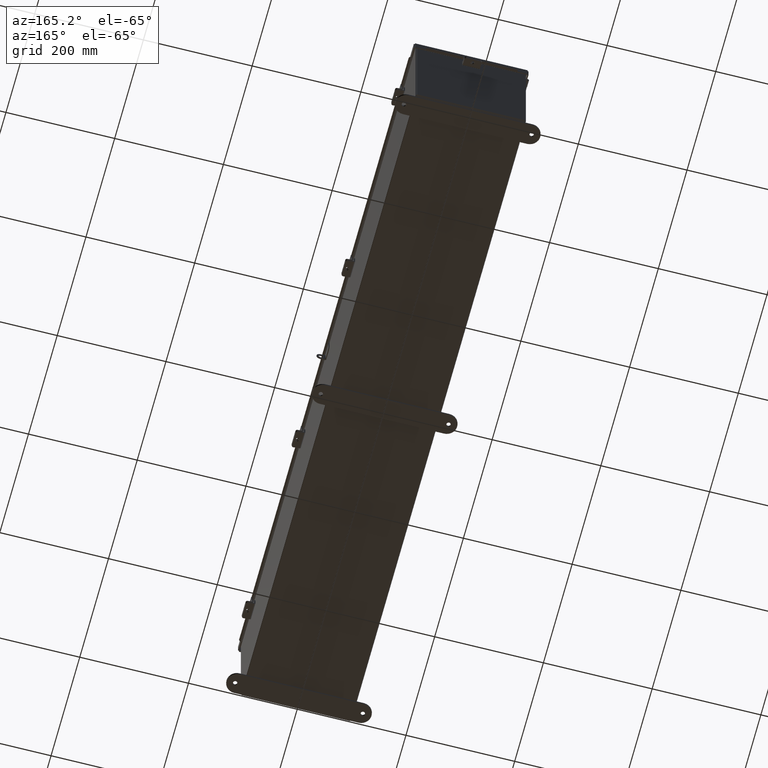
[diagram: clean part render]
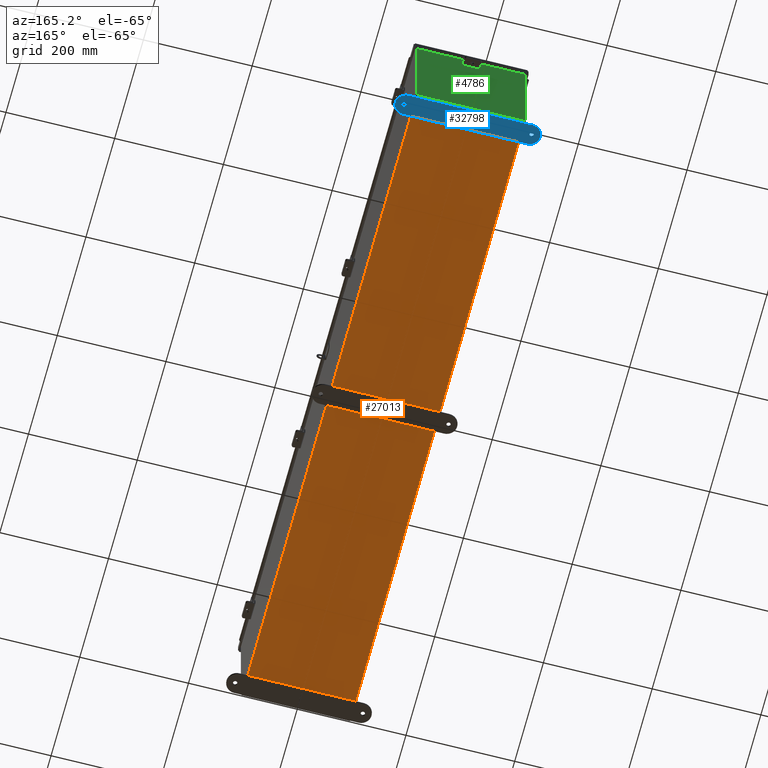
[diagram: same view with three faces highlighted in distinct colors, each labeled with its STEP entity id]
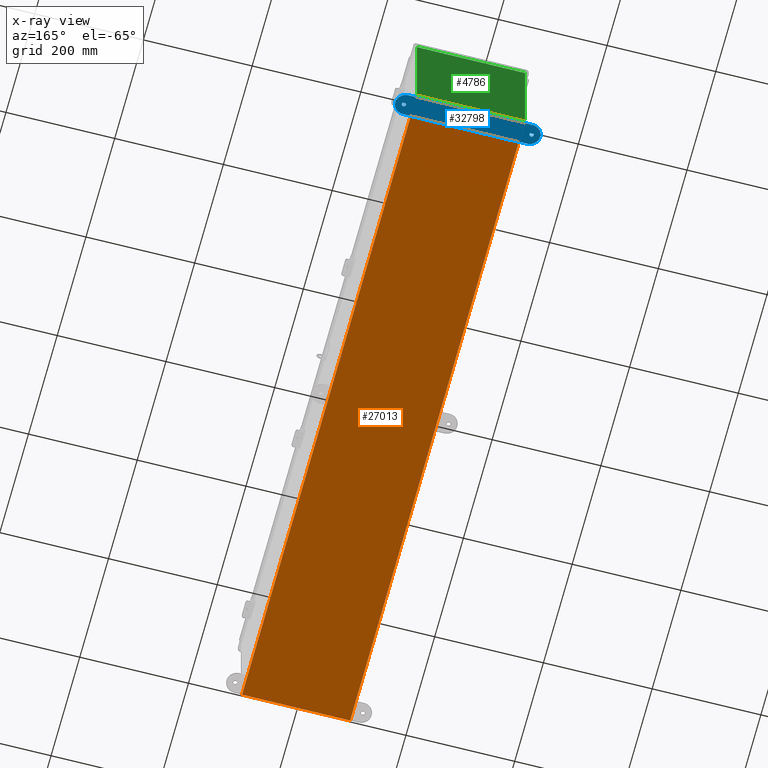
[diagram: x-ray of the same camera — body ghosted, the three highlighted faces saturated]
A machine part, auxiliary view with three faces highlighted in distinct colors.
The next image is the same camera in x-ray (body ghosted, the three faces saturated) — at least one of them is partly hidden behind the body in this view.
Their STEP definitions:

[orange] entity #27013 — the highlighted planar face has unit normal (0, 0, -1).
#205 = EDGE_CURVE ( 'NONE', #11272, #29073, #24738, .T. ) ;
#1762 = CARTESIAN_POINT ( 'NONE',  ( -4.000000000000001800, -23.92530000000000000, -0.07470000000000000300 ) ) ;
#1837 = DIRECTION ( 'NONE',  ( 1.000000000000000000, 5.463695987328526400E-016, 0.0000000000000000000 ) ) ;
#2497 = DIRECTION ( 'NONE',  ( -0.0000000000000000000, 1.000000000000000000, -0.0000000000000000000 ) ) ;
#3378 = CARTESIAN_POINT ( 'NONE',  ( -4.000000000000001800, 23.92530000000000700, -0.07470000000000000300 ) ) ;
#3596 = DIRECTION ( 'NONE',  ( -1.000000000000000000, -0.0000000000000000000, -0.0000000000000000000 ) ) ;
#5495 = DIRECTION ( 'NONE',  ( -0.0000000000000000000, -1.000000000000000000, 8.208677865577646300E-017 ) ) ;
#6029 = VECTOR ( 'NONE', #5495, 39.37007874015748100 ) ;
#6187 = VERTEX_POINT ( 'NONE', #31679 ) ;
#6406 = CARTESIAN_POINT ( 'NONE',  ( 0.0000000000000000000, 0.0000000000000000000, -0.07470000000000000300 ) ) ;
#6536 = FACE_OUTER_BOUND ( 'NONE', #15817, .T. ) ;
#7413 = CARTESIAN_POINT ( 'NONE',  ( -3.912300000000001400, 23.92530000000000700, -0.07470000000000000300 ) ) ;
#9197 = AXIS2_PLACEMENT_3D ( 'NONE', #6406, #26138, #9213 ) ;
#9213 = DIRECTION ( 'NONE',  ( -1.000000000000000000, 0.0000000000000000000, -0.0000000000000000000 ) ) ;
#9874 = ORIENTED_EDGE ( 'NONE', *, *, #19510, .T. ) ;
#11272 = VERTEX_POINT ( 'NONE', #17234 ) ;
#14110 = EDGE_CURVE ( 'NONE', #6187, #29290, #24358, .T. ) ;
#14763 = PLANE ( 'NONE',  #9197 ) ;
#15817 = EDGE_LOOP ( 'NONE', ( #27066, #35385, #22197, #9874 ) ) ;
#16836 = VECTOR ( 'NONE', #1837, 39.37007874015748100 ) ;
#17234 = CARTESIAN_POINT ( 'NONE',  ( 3.912299999999997900, 23.92529999999998900, -0.07470000000000300000 ) ) ;
#18098 = VECTOR ( 'NONE', #3596, 39.37007874015748100 ) ;
#19429 = CARTESIAN_POINT ( 'NONE',  ( -3.912300000000001400, -23.92530000000000000, -0.07470000000000022500 ) ) ;
#19510 = EDGE_CURVE ( 'NONE', #6187, #29073, #28281, .T. ) ;
#19728 = CARTESIAN_POINT ( 'NONE',  ( 3.912299999999997900, -23.92529999999998200, -0.07470000000000000300 ) ) ;
#19914 = VECTOR ( 'NONE', #2497, 39.37007874015748100 ) ;
#22197 = ORIENTED_EDGE ( 'NONE', *, *, #14110, .F. ) ;
#23512 = EDGE_CURVE ( 'NONE', #11272, #29290, #29335, .T. ) ;
#24358 = LINE ( 'NONE', #1762, #16836 ) ;
#24738 = LINE ( 'NONE', #3378, #18098 ) ;
#25161 = CARTESIAN_POINT ( 'NONE',  ( 3.912299999999997900, 23.92530000000000000, -0.07470000000000300000 ) ) ;
#26138 = DIRECTION ( 'NONE',  ( 0.0000000000000000000, 0.0000000000000000000, -1.000000000000000000 ) ) ;
#27013 = ADVANCED_FACE ( 'NONE', ( #6536 ), #14763, .T. ) ;
#27066 = ORIENTED_EDGE ( 'NONE', *, *, #205, .F. ) ;
#28281 = LINE ( 'NONE', #19429, #19914 ) ;
#29073 = VERTEX_POINT ( 'NONE', #7413 ) ;
#29290 = VERTEX_POINT ( 'NONE', #19728 ) ;
#29335 = LINE ( 'NONE', #25161, #6029 ) ;
#31679 = CARTESIAN_POINT ( 'NONE',  ( -3.912300000000001400, -23.92529999999999600, -0.07470000000000022500 ) ) ;
#35385 = ORIENTED_EDGE ( 'NONE', *, *, #23512, .T. ) ;

[blue] entity #32798 — the highlighted planar face has unit normal (0, 0, 1).
#664 = DIRECTION ( 'NONE',  ( 1.000000000000000000, 0.0000000000000000000, 0.0000000000000000000 ) ) ;
#871 = DIRECTION ( 'NONE',  ( 0.0000000000000000000, 0.0000000000000000000, 1.000000000000000000 ) ) ;
#897 = CARTESIAN_POINT ( 'NONE',  ( -4.625000000000000000, 0.4120940649496067100, 0.0000000000000000000 ) ) ;
#1210 = AXIS2_PLACEMENT_3D ( 'NONE', #21915, #13441, #5099 ) ;
#2166 = PLANE ( 'NONE',  #1210 ) ;
#2321 = DIRECTION ( 'NONE',  ( 1.000000000000000000, -1.214154663850783900E-016, 0.0000000000000000000 ) ) ;
#2362 = CIRCLE ( 'NONE', #7235, 0.1564999999999992800 ) ;
#3365 = DIRECTION ( 'NONE',  ( 0.0000000000000000000, 0.0000000000000000000, 1.000000000000000000 ) ) ;
#3556 = DIRECTION ( 'NONE',  ( 0.0000000000000000000, 0.0000000000000000000, 1.000000000000000000 ) ) ;
#4724 = CARTESIAN_POINT ( 'NONE',  ( 5.250000000000000900, 0.4120940649496110900, 0.0000000000000000000 ) ) ;
#4846 = CARTESIAN_POINT ( 'NONE',  ( -4.499999999999999100, 0.4120940649496110900, 0.0000000000000000000 ) ) ;
#5099 = DIRECTION ( 'NONE',  ( -1.000000000000000000, 0.0000000000000000000, 0.0000000000000000000 ) ) ;
#5133 = FACE_OUTER_BOUND ( 'NONE', #19971, .T. ) ;
#7053 = VERTEX_POINT ( 'NONE', #21362 ) ;
#7164 = VERTEX_POINT ( 'NONE', #13926 ) ;
#7235 = AXIS2_PLACEMENT_3D ( 'NONE', #26632, #9731, #29413 ) ;
#7606 = DIRECTION ( 'NONE',  ( 1.000000000000000000, 0.0000000000000000000, 0.0000000000000000000 ) ) ;
#8506 = ORIENTED_EDGE ( 'NONE', *, *, #21304, .T. ) ;
#8681 = AXIS2_PLACEMENT_3D ( 'NONE', #33929, #33917, #33887 ) ;
#9447 = ORIENTED_EDGE ( 'NONE', *, *, #33882, .F. ) ;
#9731 = DIRECTION ( 'NONE',  ( 0.0000000000000000000, 0.0000000000000000000, -1.000000000000000000 ) ) ;
#11012 = EDGE_CURVE ( 'NONE', #16552, #7164, #29931, .T. ) ;
#11291 = EDGE_LOOP ( 'NONE', ( #36013, #14063 ) ) ;
#12471 = EDGE_CURVE ( 'NONE', #13503, #28232, #24418, .T. ) ;
#12590 = FACE_BOUND ( 'NONE', #29492, .T. ) ;
#12923 = VECTOR ( 'NONE', #17134, 39.37007874015748100 ) ;
#13315 = VERTEX_POINT ( 'NONE', #19064 ) ;
#13441 = DIRECTION ( 'NONE',  ( 0.0000000000000000000, 0.0000000000000000000, -1.000000000000000000 ) ) ;
#13503 = VERTEX_POINT ( 'NONE', #14537 ) ;
#13926 = CARTESIAN_POINT ( 'NONE',  ( 4.499999999999999100, 1.162094064949611600, 0.0000000000000000000 ) ) ;
#14063 = ORIENTED_EDGE ( 'NONE', *, *, #12471, .T. ) ;
#14127 = AXIS2_PLACEMENT_3D ( 'NONE', #20385, #3556, #23212 ) ;
#14305 = CARTESIAN_POINT ( 'NONE',  ( -4.499999999999999100, 1.162094064949611600, 0.0000000000000000000 ) ) ;
#14537 = CARTESIAN_POINT ( 'NONE',  ( 4.468500000000000600, 0.4120940649496067100, 0.0000000000000000000 ) ) ;
#15563 = ORIENTED_EDGE ( 'NONE', *, *, #19350, .T. ) ;
#16484 = ORIENTED_EDGE ( 'NONE', *, *, #17564, .F. ) ;
#16552 = VERTEX_POINT ( 'NONE', #4724 ) ;
#17134 = DIRECTION ( 'NONE',  ( -1.000000000000000000, -1.214154663850783900E-016, 0.0000000000000000000 ) ) ;
#17564 = EDGE_CURVE ( 'NONE', #13315, #27014, #18290, .T. ) ;
#17990 = VECTOR ( 'NONE', #2321, 39.37007874015748100 ) ;
#18103 = VERTEX_POINT ( 'NONE', #18172 ) ;
#18172 = CARTESIAN_POINT ( 'NONE',  ( -4.499999999999999100, -0.3379059350503894100, 0.0000000000000000000 ) ) ;
#18290 = CIRCLE ( 'NONE', #32402, 0.1564999999999992800 ) ;
#19064 = CARTESIAN_POINT ( 'NONE',  ( -4.468500000000000600, 0.4120940649496067100, 0.0000000000000000000 ) ) ;
#19190 = EDGE_CURVE ( 'NONE', #28232, #13503, #2362, .T. ) ;
#19350 = EDGE_CURVE ( 'NONE', #30410, #18103, #26130, .T. ) ;
#19778 = CARTESIAN_POINT ( 'NONE',  ( -4.499999999999999100, 1.162094064949611600, 0.0000000000000000000 ) ) ;
#19971 = EDGE_LOOP ( 'NONE', ( #26616, #32700, #30475, #15563, #8506 ) ) ;
#20184 = CARTESIAN_POINT ( 'NONE',  ( 4.499999999999999100, 0.4120940649496110900, 0.0000000000000000000 ) ) ;
#20385 = CARTESIAN_POINT ( 'NONE',  ( -4.625000000000000000, 0.4120940649496067100, 0.0000000000000000000 ) ) ;
#20414 = EDGE_CURVE ( 'NONE', #7053, #16552, #20720, .T. ) ;
#20720 = CIRCLE ( 'NONE', #20736, 0.7500000000000010000 ) ;
#20736 = AXIS2_PLACEMENT_3D ( 'NONE', #20184, #3365, #23040 ) ;
#20966 = FACE_BOUND ( 'NONE', #11291, .T. ) ;
#21304 = EDGE_CURVE ( 'NONE', #18103, #7053, #26405, .T. ) ;
#21362 = CARTESIAN_POINT ( 'NONE',  ( 4.499999999999999100, -0.3379059350503894100, 0.0000000000000000000 ) ) ;
#21915 = CARTESIAN_POINT ( 'NONE',  ( 4.499999999999999100, 0.4120940649496110900, 0.0000000000000000000 ) ) ;
#23040 = DIRECTION ( 'NONE',  ( -1.000000000000000000, 0.0000000000000000000, 0.0000000000000000000 ) ) ;
#23092 = CIRCLE ( 'NONE', #14127, 0.1564999999999992800 ) ;
#23212 = DIRECTION ( 'NONE',  ( 1.000000000000000000, 0.0000000000000000000, 0.0000000000000000000 ) ) ;
#23257 = CARTESIAN_POINT ( 'NONE',  ( -4.781499999999999400, 0.4120940649496067100, 0.0000000000000000000 ) ) ;
#24418 = CIRCLE ( 'NONE', #8681, 0.1564999999999992800 ) ;
#24525 = DIRECTION ( 'NONE',  ( 0.0000000000000000000, 0.0000000000000000000, 1.000000000000000000 ) ) ;
#25478 = DIRECTION ( 'NONE',  ( -1.000000000000000000, 0.0000000000000000000, 0.0000000000000000000 ) ) ;
#25527 = DIRECTION ( 'NONE',  ( 0.0000000000000000000, 0.0000000000000000000, 1.000000000000000000 ) ) ;
#25724 = CARTESIAN_POINT ( 'NONE',  ( 4.499999999999999100, 0.4120940649496110900, 0.0000000000000000000 ) ) ;
#26130 = CIRCLE ( 'NONE', #28017, 0.7499999999999998900 ) ;
#26405 = LINE ( 'NONE', #35944, #17990 ) ;
#26616 = ORIENTED_EDGE ( 'NONE', *, *, #20414, .T. ) ;
#26632 = CARTESIAN_POINT ( 'NONE',  ( 4.625000000000000000, 0.4120940649496067100, 0.0000000000000000000 ) ) ;
#27014 = VERTEX_POINT ( 'NONE', #23257 ) ;
#28017 = AXIS2_PLACEMENT_3D ( 'NONE', #4846, #24525, #7606 ) ;
#28232 = VERTEX_POINT ( 'NONE', #28859 ) ;
#28859 = CARTESIAN_POINT ( 'NONE',  ( 4.781499999999999400, 0.4120940649496067100, 0.0000000000000000000 ) ) ;
#29413 = DIRECTION ( 'NONE',  ( -1.000000000000000000, 0.0000000000000000000, 0.0000000000000000000 ) ) ;
#29492 = EDGE_LOOP ( 'NONE', ( #16484, #9447 ) ) ;
#29931 = CIRCLE ( 'NONE', #31755, 0.7500000000000010000 ) ;
#30410 = VERTEX_POINT ( 'NONE', #19778 ) ;
#30475 = ORIENTED_EDGE ( 'NONE', *, *, #34350, .T. ) ;
#31755 = AXIS2_PLACEMENT_3D ( 'NONE', #25724, #25527, #25478 ) ;
#32402 = AXIS2_PLACEMENT_3D ( 'NONE', #897, #871, #664 ) ;
#32700 = ORIENTED_EDGE ( 'NONE', *, *, #11012, .T. ) ;
#32798 = ADVANCED_FACE ( 'NONE', ( #5133, #12590, #20966 ), #2166, .F. ) ;
#33882 = EDGE_CURVE ( 'NONE', #27014, #13315, #23092, .T. ) ;
#33887 = DIRECTION ( 'NONE',  ( -1.000000000000000000, 0.0000000000000000000, 0.0000000000000000000 ) ) ;
#33917 = DIRECTION ( 'NONE',  ( 0.0000000000000000000, 0.0000000000000000000, -1.000000000000000000 ) ) ;
#33929 = CARTESIAN_POINT ( 'NONE',  ( 4.625000000000000000, 0.4120940649496067100, 0.0000000000000000000 ) ) ;
#34350 = EDGE_CURVE ( 'NONE', #7164, #30410, #35334, .T. ) ;
#35334 = LINE ( 'NONE', #14305, #12923 ) ;
#35944 = CARTESIAN_POINT ( 'NONE',  ( -4.499999999999999100, -0.3379059350503894100, 0.0000000000000000000 ) ) ;
#36013 = ORIENTED_EDGE ( 'NONE', *, *, #19190, .T. ) ;

[green] entity #4786 — the highlighted planar face has unit normal (0, -1, 0).
#13 = EDGE_CURVE ( 'NONE', #21863, #27866, #22532, .T. ) ;
#140 = EDGE_CURVE ( 'NONE', #33851, #3971, #19885, .T. ) ;
#450 = EDGE_CURVE ( 'NONE', #30816, #16437, #9270, .T. ) ;
#827 = VECTOR ( 'NONE', #23792, 39.37007874015748100 ) ;
#1495 = CARTESIAN_POINT ( 'NONE',  ( -3.582300000000000000, 0.0000000000000000000, 3.874949999999999700 ) ) ;
#1700 = LINE ( 'NONE', #32572, #827 ) ;
#2332 = DIRECTION ( 'NONE',  ( 0.0000000000000000000, 0.0000000000000000000, 1.000000000000000000 ) ) ;
#2428 = VECTOR ( 'NONE', #2332, 39.37007874015748100 ) ;
#3374 = DIRECTION ( 'NONE',  ( -0.0000000000000000000, -0.0000000000000000000, 1.000000000000000000 ) ) ;
#3592 = EDGE_CURVE ( 'NONE', #33851, #5811, #1700, .T. ) ;
#3765 = DIRECTION ( 'NONE',  ( -0.0000000000000000000, 1.000000000000000000, -0.0000000000000000000 ) ) ;
#3938 = FACE_OUTER_BOUND ( 'NONE', #22232, .T. ) ;
#3971 = VERTEX_POINT ( 'NONE', #19281 ) ;
#4786 = ADVANCED_FACE ( 'NONE', ( #3938 ), #13482, .F. ) ;
#4953 = CARTESIAN_POINT ( 'NONE',  ( -3.925300000000000500, 0.0000000000000000000, 3.925300000000000900 ) ) ;
#5530 = DIRECTION ( 'NONE',  ( 0.0000000000000000000, 0.0000000000000000000, -1.000000000000000000 ) ) ;
#5693 = EDGE_CURVE ( 'NONE', #3971, #35081, #14453, .T. ) ;
#5720 = CARTESIAN_POINT ( 'NONE',  ( -3.582300000000000000, 0.0000000000000000000, 0.0000000000000000000 ) ) ;
#5811 = VERTEX_POINT ( 'NONE', #6533 ) ;
#6331 = AXIS2_PLACEMENT_3D ( 'NONE', #10452, #10520, #10742 ) ;
#6533 = CARTESIAN_POINT ( 'NONE',  ( 3.925299999999999100, 0.0000000000000000000, 3.925300000000000900 ) ) ;
#6584 = ORIENTED_EDGE ( 'NONE', *, *, #33320, .T. ) ;
#7148 = ORIENTED_EDGE ( 'NONE', *, *, #15946, .T. ) ;
#7202 = LINE ( 'NONE', #19139, #2428 ) ;
#7280 = CARTESIAN_POINT ( 'NONE',  ( -3.619650000000000500, 0.0000000000000000000, 3.925300000000000900 ) ) ;
#7315 = DIRECTION ( 'NONE',  ( 0.0000000000000000000, 0.0000000000000000000, 1.000000000000000000 ) ) ;
#8357 = VECTOR ( 'NONE', #8616, 39.37007874015748100 ) ;
#8415 = EDGE_CURVE ( 'NONE', #18925, #30816, #36248, .T. ) ;
#8616 = DIRECTION ( 'NONE',  ( 1.000000000000000000, 0.0000000000000000000, 0.0000000000000000000 ) ) ;
#8661 = CARTESIAN_POINT ( 'NONE',  ( -3.925300000000000500, 0.0000000000000000000, 3.925300000000000900 ) ) ;
#8889 = ORIENTED_EDGE ( 'NONE', *, *, #13, .F. ) ;
#9270 = LINE ( 'NONE', #8661, #8357 ) ;
#9571 = CARTESIAN_POINT ( 'NONE',  ( 3.582299999999999200, 0.0000000000000000000, 3.874949999999999700 ) ) ;
#10452 = CARTESIAN_POINT ( 'NONE',  ( 0.0000000000000000000, 0.0000000000000000000, 0.0000000000000000000 ) ) ;
#10520 = DIRECTION ( 'NONE',  ( 0.0000000000000000000, -1.000000000000000000, 0.0000000000000000000 ) ) ;
#10565 = AXIS2_PLACEMENT_3D ( 'NONE', #13776, #12680, #28637 ) ;
#10742 = DIRECTION ( 'NONE',  ( 0.0000000000000000000, -0.0000000000000000000, -1.000000000000000000 ) ) ;
#10761 = VECTOR ( 'NONE', #7315, 39.37007874015748100 ) ;
#11002 = ORIENTED_EDGE ( 'NONE', *, *, #140, .F. ) ;
#11095 = ORIENTED_EDGE ( 'NONE', *, *, #450, .T. ) ;
#11450 = ORIENTED_EDGE ( 'NONE', *, *, #5693, .F. ) ;
#12057 = ORIENTED_EDGE ( 'NONE', *, *, #34487, .F. ) ;
#12277 = LINE ( 'NONE', #16147, #19760 ) ;
#12625 = CARTESIAN_POINT ( 'NONE',  ( 3.925299999999999100, 0.0000000000000000000, -3.925300000000000500 ) ) ;
#12680 = DIRECTION ( 'NONE',  ( -0.0000000000000000000, 1.000000000000000000, -0.0000000000000000000 ) ) ;
#13121 = CARTESIAN_POINT ( 'NONE',  ( -3.925300000000000500, 0.0000000000000000000, 3.925300000000000900 ) ) ;
#13168 = CARTESIAN_POINT ( 'NONE',  ( -3.582300000000000000, 0.0000000000000000000, 3.912299999999998800 ) ) ;
#13332 = VERTEX_POINT ( 'NONE', #18517 ) ;
#13482 = PLANE ( 'NONE',  #6331 ) ;
#13776 = CARTESIAN_POINT ( 'NONE',  ( 3.600974999999999100, 0.0000000000000000000, 3.874949999999999700 ) ) ;
#13844 = VECTOR ( 'NONE', #3374, 39.37007874015748100 ) ;
#14453 = CIRCLE ( 'NONE', #10565, 0.01867500000000003900 ) ;
#15025 = VECTOR ( 'NONE', #5530, 39.37007874015748100 ) ;
#15528 = ORIENTED_EDGE ( 'NONE', *, *, #8415, .T. ) ;
#15946 = EDGE_CURVE ( 'NONE', #27845, #18925, #12277, .T. ) ;
#16121 = DIRECTION ( 'NONE',  ( -1.000000000000000000, -0.0000000000000000000, -0.0000000000000000000 ) ) ;
#16147 = CARTESIAN_POINT ( 'NONE',  ( -3.925300000000000500, 0.0000000000000000000, -3.925300000000000500 ) ) ;
#16437 = VERTEX_POINT ( 'NONE', #7280 ) ;
#16782 = CARTESIAN_POINT ( 'NONE',  ( -3.925300000000000500, 0.0000000000000000000, -3.925300000000000500 ) ) ;
#16872 = CIRCLE ( 'NONE', #31558, 0.01867500000000003900 ) ;
#18182 = EDGE_CURVE ( 'NONE', #13332, #16437, #18226, .T. ) ;
#18226 = LINE ( 'NONE', #21370, #10761 ) ;
#18261 = VERTEX_POINT ( 'NONE', #27408 ) ;
#18269 = CARTESIAN_POINT ( 'NONE',  ( 3.619650000000000500, 0.0000000000000000000, 3.925300000000000900 ) ) ;
#18288 = EDGE_CURVE ( 'NONE', #35081, #18261, #7202, .T. ) ;
#18517 = CARTESIAN_POINT ( 'NONE',  ( -3.619650000000000500, 0.0000000000000000000, 3.874949999999999700 ) ) ;
#18803 = DIRECTION ( 'NONE',  ( 1.000000000000000000, 0.0000000000000000000, 0.0000000000000000000 ) ) ;
#18851 = DIRECTION ( 'NONE',  ( -2.170286390199978800E-014, 0.0000000000000000000, -1.000000000000000000 ) ) ;
#18925 = VERTEX_POINT ( 'NONE', #16782 ) ;
#19139 = CARTESIAN_POINT ( 'NONE',  ( 3.582299999999999200, 0.0000000000000000000, 0.0000000000000000000 ) ) ;
#19281 = CARTESIAN_POINT ( 'NONE',  ( 3.619649999999999100, 0.0000000000000000000, 3.874949999999999700 ) ) ;
#19760 = VECTOR ( 'NONE', #16121, 39.37007874015748100 ) ;
#19885 = LINE ( 'NONE', #33698, #26517 ) ;
#20592 = CARTESIAN_POINT ( 'NONE',  ( -3.600975000000000000, 0.0000000000000000000, 3.874949999999999700 ) ) ;
#20708 = ORIENTED_EDGE ( 'NONE', *, *, #18182, .F. ) ;
#21370 = CARTESIAN_POINT ( 'NONE',  ( -3.619650000000000500, 0.0000000000000000000, 0.0000000000000000000 ) ) ;
#21863 = VERTEX_POINT ( 'NONE', #27120 ) ;
#22232 = EDGE_LOOP ( 'NONE', ( #20708, #12057, #8889, #6584, #24264, #11450, #11002, #22974, #32174, #7148, #15528, #11095 ) ) ;
#22532 = LINE ( 'NONE', #5720, #15025 ) ;
#22974 = ORIENTED_EDGE ( 'NONE', *, *, #3592, .T. ) ;
#23428 = DIRECTION ( 'NONE',  ( 0.0000000000000000000, 0.0000000000000000000, -1.000000000000000000 ) ) ;
#23792 = DIRECTION ( 'NONE',  ( 1.000000000000000000, 0.0000000000000000000, 0.0000000000000000000 ) ) ;
#24264 = ORIENTED_EDGE ( 'NONE', *, *, #18288, .F. ) ;
#26517 = VECTOR ( 'NONE', #18851, 39.37007874015748100 ) ;
#26683 = LINE ( 'NONE', #13168, #33216 ) ;
#26844 = LINE ( 'NONE', #33356, #34259 ) ;
#27120 = CARTESIAN_POINT ( 'NONE',  ( -3.582300000000000000, 0.0000000000000000000, 3.912299999999998800 ) ) ;
#27408 = CARTESIAN_POINT ( 'NONE',  ( 3.582299999999999200, 0.0000000000000000000, 3.912299999999998800 ) ) ;
#27737 = DIRECTION ( 'NONE',  ( 0.0000000000000000000, 0.0000000000000000000, -1.000000000000000000 ) ) ;
#27845 = VERTEX_POINT ( 'NONE', #12625 ) ;
#27866 = VERTEX_POINT ( 'NONE', #1495 ) ;
#28637 = DIRECTION ( 'NONE',  ( 0.0000000000000000000, 0.0000000000000000000, -1.000000000000000000 ) ) ;
#30816 = VERTEX_POINT ( 'NONE', #13121 ) ;
#30972 = EDGE_CURVE ( 'NONE', #5811, #27845, #26844, .T. ) ;
#31558 = AXIS2_PLACEMENT_3D ( 'NONE', #20592, #3765, #23428 ) ;
#32174 = ORIENTED_EDGE ( 'NONE', *, *, #30972, .T. ) ;
#32572 = CARTESIAN_POINT ( 'NONE',  ( -3.925300000000000500, 0.0000000000000000000, 3.925300000000000900 ) ) ;
#33216 = VECTOR ( 'NONE', #18803, 39.37007874015748100 ) ;
#33320 = EDGE_CURVE ( 'NONE', #21863, #18261, #26683, .T. ) ;
#33356 = CARTESIAN_POINT ( 'NONE',  ( 3.925299999999999100, 0.0000000000000000000, 3.925300000000000900 ) ) ;
#33698 = CARTESIAN_POINT ( 'NONE',  ( 3.619649999999915200, 0.0000000000000000000, -7.867722221753078700E-014 ) ) ;
#33851 = VERTEX_POINT ( 'NONE', #18269 ) ;
#34259 = VECTOR ( 'NONE', #27737, 39.37007874015748100 ) ;
#34487 = EDGE_CURVE ( 'NONE', #27866, #13332, #16872, .T. ) ;
#35081 = VERTEX_POINT ( 'NONE', #9571 ) ;
#36248 = LINE ( 'NONE', #4953, #13844 ) ;